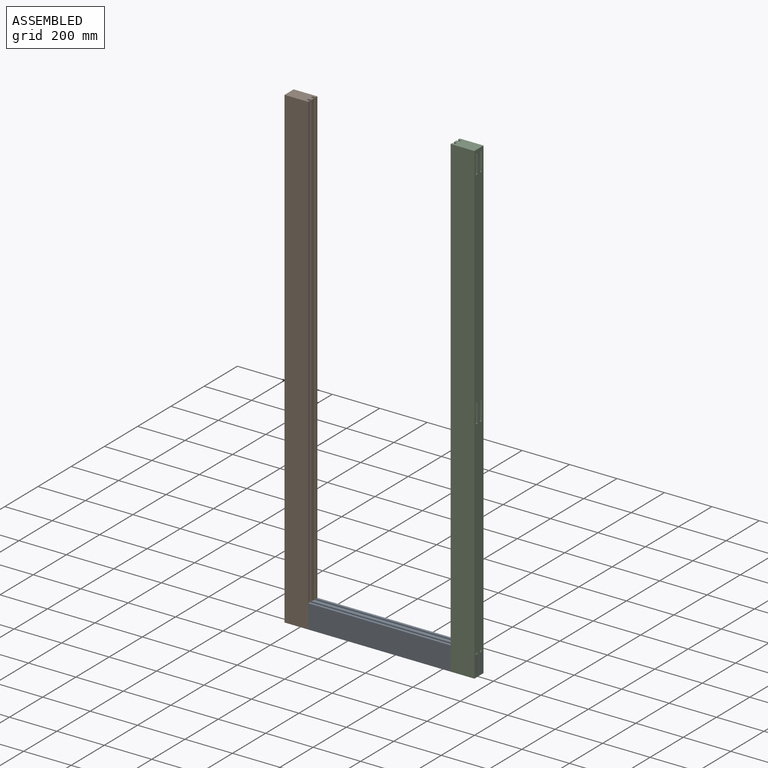
[diagram: assembled view]
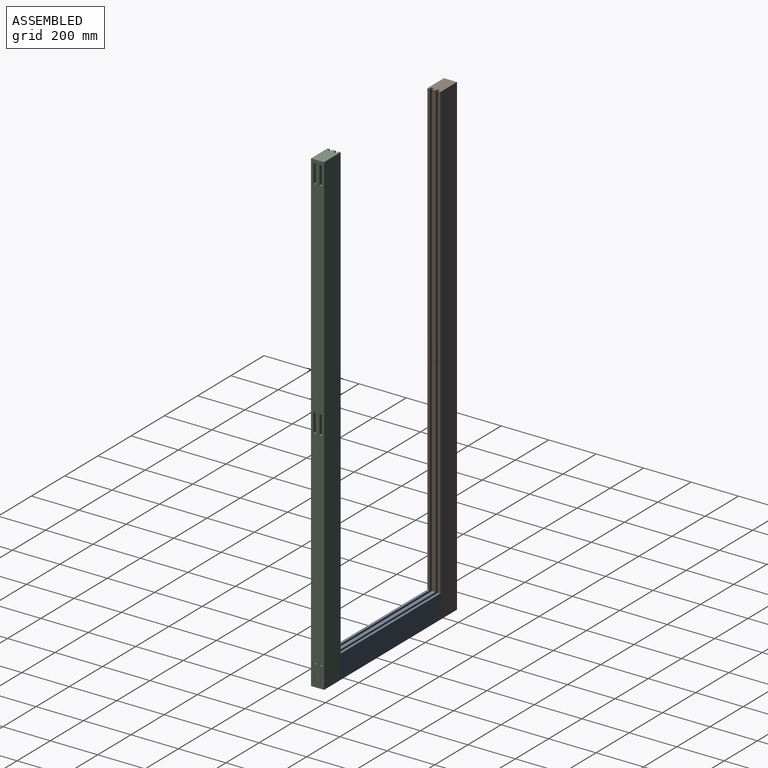
[diagram: assembled view, second angle]
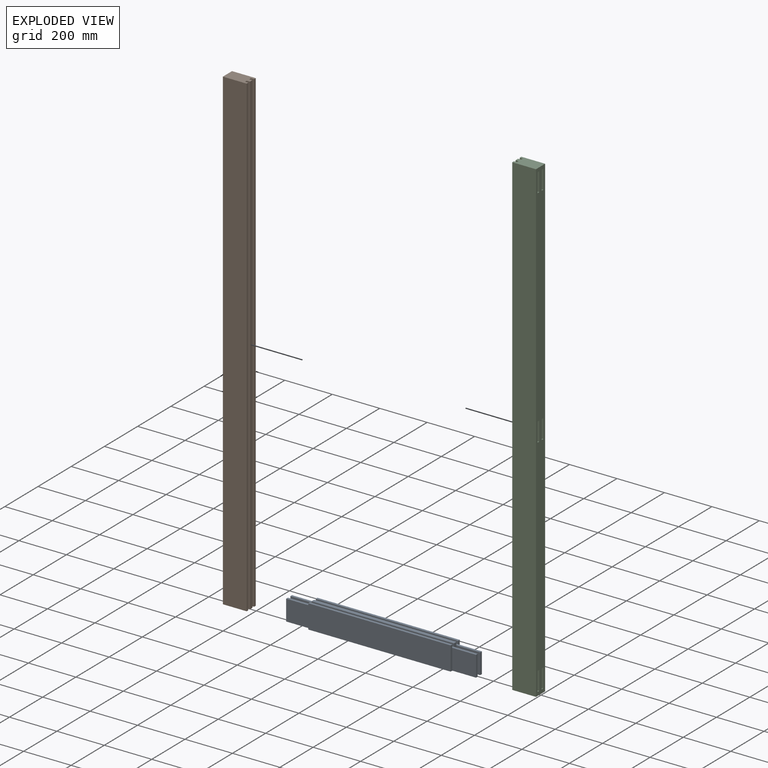
[diagram: exploded view]
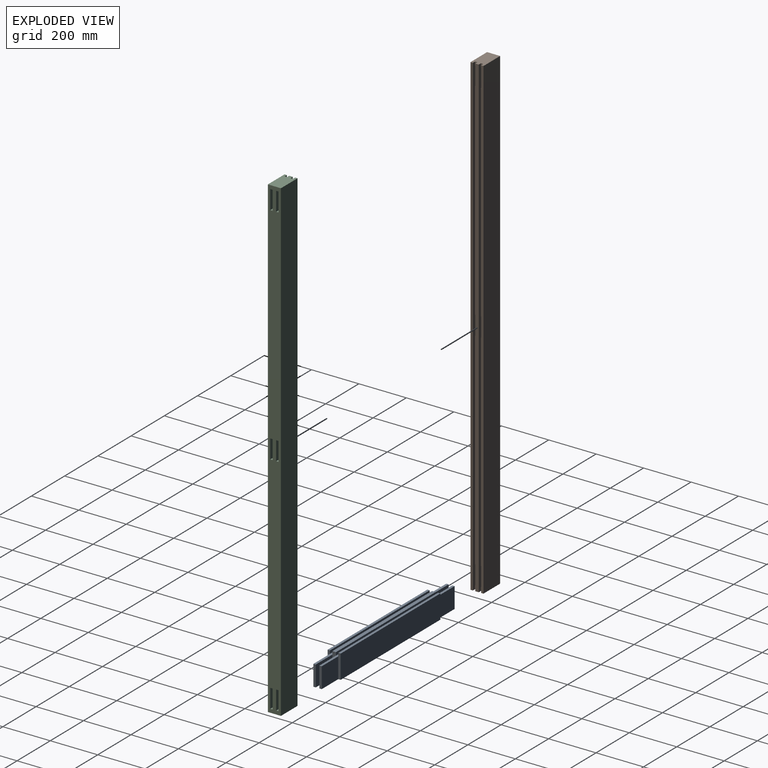
[diagram: exploded view, second angle]
ASSEMBLY  parts=3 mates=2
PART A: 30 faces, bbox 800x55x100 mm
  f0: plane 600x15mm, normal (0,0,1), area 9000mm2, adj f14,f20,f24,f27
  f1: plane 600x10mm, normal (0,0,1), area 6000mm2, adj f9,f17,f23,f28
  f2: plane 100x87mm, normal (0,1,0), area 8700mm2, adj f6,f8,f17,f29
  f3: plane 100x87mm, normal (0,1,0), area 8700mm2, adj f4,f8,f23,f29
  f4: plane 87x10mm, normal (1,0,0), area 870mm2, adj f3,f8,f18,f29
  f5: plane 87x10mm, normal (1,0,0), area 870mm2, adj f8,f19,f21,f26
  f6: plane 87x10mm, normal (-1,0,0), area 870mm2, adj f2,f8,f12,f29
  f7: plane 87x10mm, normal (-1,0,0), area 870mm2, adj f8,f13,f15,f26
  f8: plane 800x55mm, normal (0,0,-1), area 37000mm2, adj f2,f3,f4,f5,f6,f7,f9,f11
  f9: plane 600x100mm, normal (0,1,0), area 60000mm2, adj f1,f8,f17,f23
  f10: plane 600x10mm, normal (0,0,1), area 6000mm2, adj f11,f16,f22,f25
  f11: plane 600x100mm, normal (0,-1,0), area 60000mm2, adj f8,f10,f16,f22
  f12: plane 100x87mm, normal (0,-1,0), area 8700mm2, adj f6,f8,f14,f29
  f13: plane 100x87mm, normal (0,1,0), area 8700mm2, adj f7,f8,f14,f26
  f14: plane 100x15mm, normal (-1,0,0), area 1500mm2, adj f0,f8,f12,f13,f24,f27
  f15: plane 100x87mm, normal (0,-1,0), area 8700mm2, adj f7,f8,f16,f26
  f16: plane 100x10mm, normal (-1,0,0), area 1000mm2, adj f8,f10,f11,f15,f25
  f17: plane 100x10mm, normal (-1,0,0), area 1000mm2, adj f1,f2,f8,f9,f28
  f18: plane 100x87mm, normal (0,-1,0), area 8700mm2, adj f4,f8,f20,f29
  f19: plane 100x87mm, normal (0,1,0), area 8700mm2, adj f5,f8,f20,f26
  f20: plane 100x15mm, normal (1,0,0), area 1500mm2, adj f0,f8,f18,f19,f24,f27
  f21: plane 100x87mm, normal (0,-1,0), area 8700mm2, adj f5,f8,f22,f26
  f22: plane 100x10mm, normal (1,0,0), area 1000mm2, adj f8,f10,f11,f21,f25
  f23: plane 100x10mm, normal (1,0,0), area 1000mm2, adj f1,f3,f8,f9,f28
  f24: plane 600x13mm, normal (0,-1,0), area 7800mm2, adj f0,f14,f20,f26
  f25: plane 600x13mm, normal (0,1,0), area 7800mm2, adj f10,f16,f22,f26
  f26: plane 800x10mm, normal (0,0,1), area 8000mm2, adj f5,f7,f13,f15,f19,f21,f24,f25
  f27: plane 600x13mm, normal (0,1,0), area 7800mm2, adj f0,f14,f20,f29
  f28: plane 600x13mm, normal (0,-1,0), area 7800mm2, adj f1,f17,f23,f29
  f29: plane 800x10mm, normal (0,0,1), area 8000mm2, adj f2,f3,f4,f6,f12,f18,f27,f28
PART B: 32 faces, bbox 100x55x2010 mm
  f0: plane 15x10mm, normal (-1,0,0), area 150mm2, adj f1,f10,f11,f19
  f1: plane 87x10mm, normal (0,0,1), area 870mm2, adj f0,f11,f19,f20
  f2: plane 87x10mm, normal (0,0,-1), area 870mm2, adj f3,f11,f19,f20
  f3: plane 870x10mm, normal (-1,0,0), area 8700mm2, adj f2,f4,f11,f19
  f4: plane 87x10mm, normal (0,0,1), area 870mm2, adj f3,f11,f19,f20
  f5: plane 87x10mm, normal (0,0,1), area 870mm2, adj f6,f16,f17,f20
  f6: plane 870x10mm, normal (-1,0,0), area 8700mm2, adj f5,f7,f16,f17
  f7: plane 87x10mm, normal (0,0,-1), area 870mm2, adj f6,f16,f17,f20
  f8: plane 87x10mm, normal (0,0,1), area 870mm2, adj f9,f16,f17,f20
  f9: plane 15x10mm, normal (-1,0,0), area 150mm2, adj f8,f10,f16,f17
  f10: plane 100x55mm, normal (0,0,-1), area 5240mm2, adj f0,f9,f11,f12,f13,f14,f15,f16
  f11: plane 2010x100mm, normal (0,-1,0), area 47010mm2, adj f0,f1,f2,f3,f4,f10,f12,f20
  f12: plane 2010x10mm, normal (-1,0,0), area 20100mm2, adj f10,f11,f13,f31
  f13: plane 2010x100mm, normal (0,1,0), area 201000mm2, adj f10,f12,f20,f31
  f14: plane 2010x100mm, normal (0,-1,0), area 201000mm2, adj f10,f15,f20,f31
  f15: plane 2010x10mm, normal (-1,0,0), area 20100mm2, adj f10,f14,f16,f31
  f16: plane 2010x100mm, normal (0,1,0), area 47010mm2, adj f5,f6,f7,f8,f9,f10,f15,f20
  f17: plane 2010x100mm, normal (0,-1,0), area 47010mm2, adj f5,f6,f7,f8,f9,f10,f18,f20
  f18: plane 2010x15mm, normal (-1,0,0), area 30150mm2, adj f10,f17,f19,f31
  f19: plane 2010x100mm, normal (0,1,0), area 47010mm2, adj f0,f1,f2,f3,f4,f10,f18,f20
  f20: plane 2010x55mm, normal (1,0,0), area 105750mm2, adj f1,f2,f4,f5,f7,f8,f10,f11
  f21: plane 15x10mm, normal (-1,0,0), area 150mm2, adj f11,f19,f22,f31
  f22: plane 87x10mm, normal (0,0,-1), area 870mm2, adj f11,f19,f20,f21
  f23: plane 87x10mm, normal (0,0,1), area 870mm2, adj f11,f19,f20,f24
  f24: plane 870x10mm, normal (-1,0,0), area 8700mm2, adj f11,f19,f23,f25
  f25: plane 87x10mm, normal (0,0,-1), area 870mm2, adj f11,f19,f20,f24
  f26: plane 87x10mm, normal (0,0,-1), area 870mm2, adj f16,f17,f20,f27
  f27: plane 870x10mm, normal (-1,0,0), area 8700mm2, adj f16,f17,f26,f28
  f28: plane 87x10mm, normal (0,0,1), area 870mm2, adj f16,f17,f20,f27
  f29: plane 87x10mm, normal (0,0,-1), area 870mm2, adj f16,f17,f20,f30
  f30: plane 15x10mm, normal (-1,0,0), area 150mm2, adj f16,f17,f29,f31
  f31: plane 100x55mm, normal (0,0,1), area 5240mm2, adj f11,f12,f13,f14,f15,f16,f17,f18
PART C: same geometry as B
PLACE A t=(-25.47,149.19,51.52)mm
PLACE B rot(axis=(0,0,-1),180deg) t=(16.36,-46.79,0)mm
PLACE C t=(732.69,-55.92,0)mm
MATE fastened A.f16 <-> B.f12  axis (-1,0,0) through (74.53,-78.85,0)mm
MATE fastened C.f15 <-> A.f22  axis (-1,0,0) through (674.53,-78.85,0)mm
